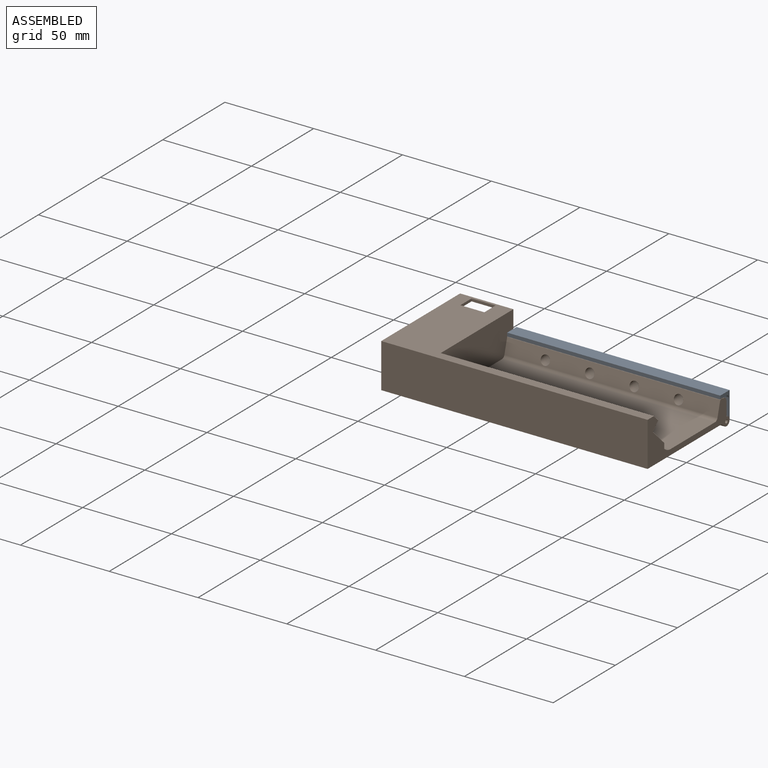
[diagram: assembled view]
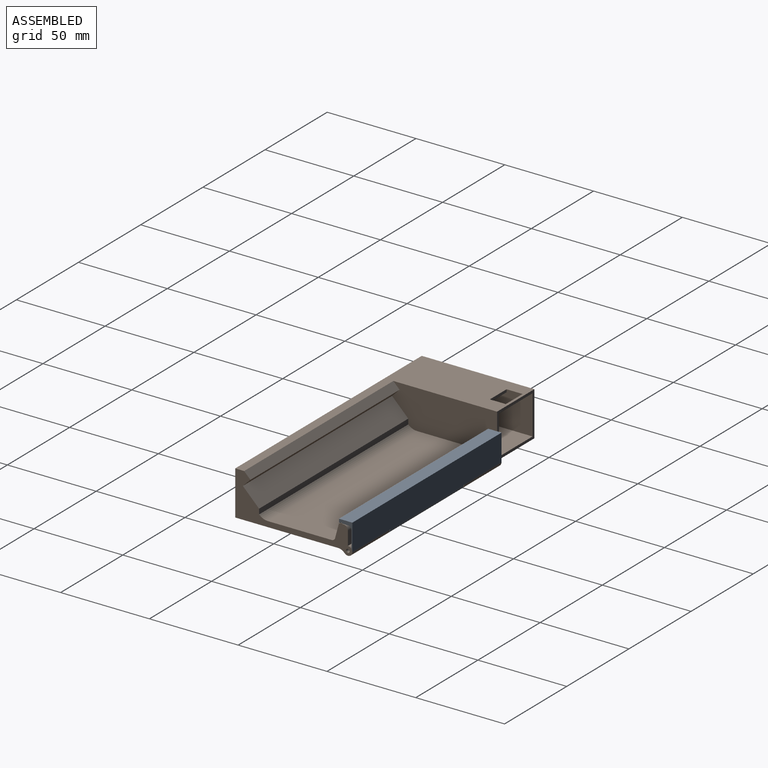
[diagram: assembled view, second angle]
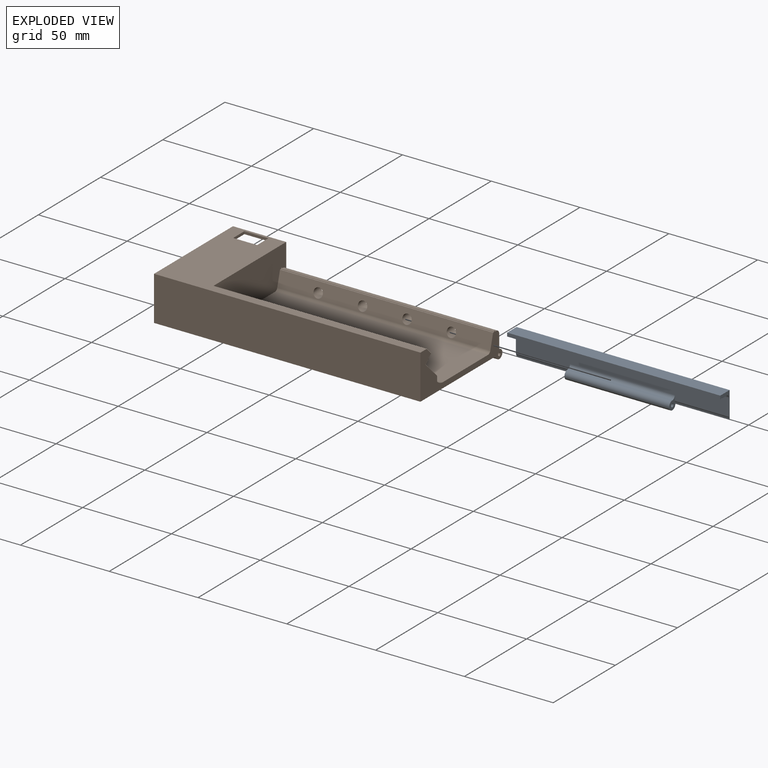
[diagram: exploded view]
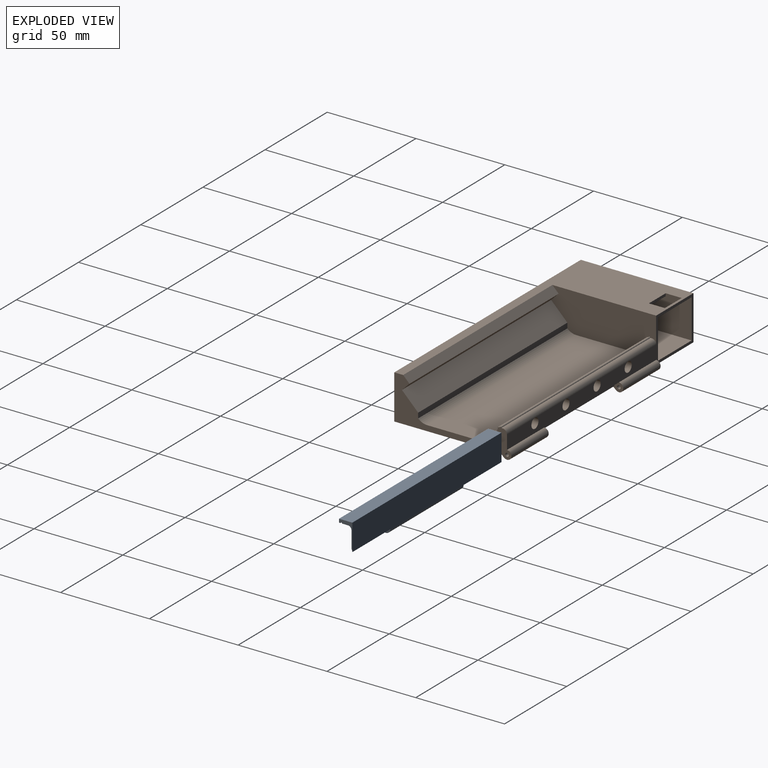
[diagram: exploded view, second angle]
ASSEMBLY  parts=2 mates=2
PART A: 17 faces, bbox 17.5x120x7.5 mm
  f0: plane 120x3.25mm, normal (1,0,0), area 390mm2, adj f10,f11,f14,f15
  f1: cylinder r=2.5mm len=59mm, axis (0,1,0), area 695.1mm2, adj f3,f4,f7,f16
  f2: cylinder r=1mm len=59mm, axis (0,1,0), area 370.7mm2, adj f3,f4
  f3: plane 7x5mm, normal (0,-1,0), area 18mm2, adj f1,f2,f6,f9,f16
  f4: plane 7x5mm, normal (0,1,0), area 18mm2, adj f1,f2,f5,f9,f16
  f5: cylinder r=2.5mm len=30.5mm, axis (0,-1,0), area 49.1mm2, adj f4,f7,f9,f10
  f6: cylinder r=2.5mm len=30.5mm, axis (0,-1,0), area 49.1mm2, adj f3,f7,f9,f11
  f7: plane 120x15mm, normal (0,0,1), area 1800mm2, adj f1,f5,f6,f8,f10,f11
  f8: plane 120x7.5mm, normal (-1,0,0), area 900mm2, adj f7,f10,f11,f13
  f9: plane 120x9.5mm, normal (0,0,-1), area 963mm2, adj f3,f4,f5,f6,f10,f11,f15,f16
  f10: plane 15x7.5mm, normal (0,1,0), area 21.5mm2, adj f0,f5,f7,f8,f9,f12,f13,f14
  f11: plane 15x7.5mm, normal (0,-1,0), area 21.5mm2, adj f0,f6,f7,f8,f9,f12,f13,f14
  f12: plane 120x0.75mm, normal (1,0,0), area 90mm2, adj f10,f11,f13,f14
  f13: plane 120x2mm, normal (0,0,-1), area 240mm2, adj f8,f10,f11,f12
  f14: cylinder r=0.5mm len=120mm, axis (0,-1,0), area 188.5mm2, adj f0,f10,f11,f12
  f15: cylinder r=2mm len=120mm, axis (0,1,0), area 377mm2, adj f0,f9,f10,f11
  f16: cylinder r=2mm len=59mm, axis (0,1,0), area 185.4mm2, adj f1,f3,f4,f9
PART B: 53 faces, bbox 150x27.5x65.9 mm
  f0: plane 59.14x21.92mm, normal (1,0,0), area 1127.2mm2, adj f1,f2,f9,f10,f11,f12,f13,f14
  f1: plane 120x0.75mm, normal (0,-1,0), area 90mm2, adj f0,f3,f9,f48
  f2: plane 150x25mm, normal (0,0,1), area 990.1mm2, adj f0,f3,f4,f6,f7,f8,f16,f18
  f3: plane 65.94x27.5mm, normal (1,0,0), area 471.4mm2, adj f1,f2,f4,f5,f9,f10,f11,f12
  f4: cylinder r=2.5mm len=30mm, axis (1,0,0), area 298.7mm2, adj f2,f3,f43,f51
  f5: cylinder r=1mm len=30mm, axis (1,0,0), area 188.5mm2, adj f3,f43
  f6: plane 8.09x5mm, normal (-1,0,0), area 13.6mm2, adj f2,f18,f39,f41,f50
  f7: plane 60.44x27mm, normal (0,-1,0), area 1631.7mm2, adj f2,f31,f32,f34
  f8: plane 60.44x27mm, normal (0,1,0), area 1510.2mm2, adj f2,f31,f32,f34,f35,f36,f37,f38
  f9: plane 120x0.02mm, normal (0,0,-1), area 2mm2, adj f0,f1,f3,f49
  f10: plane 120x35.87mm, normal (0,-1,0), area 4303.8mm2, adj f0,f3,f11,f52
  f11: cylinder r=7.07mm len=120mm, axis (-1,0,0), area 666.4mm2, adj f0,f3,f10,f12
  f12: plane 120x2.93mm, normal (0,0,1), area 351.5mm2, adj f0,f3,f11,f13
  f13: plane 120x9.14mm, normal (0,-0.71,0.71), area 1551.5mm2, adj f0,f3,f12,f14
  f14: plane 120x4.24mm, normal (0,0.71,0.71), area 720mm2, adj f0,f3,f13,f15
  f15: plane 120x3.54mm, normal (0,-0.71,0.71), area 600mm2, adj f0,f3,f14,f16
  f16: plane 150x63.44mm, normal (0,-1,0), area 2381.6mm2, adj f0,f2,f3,f15,f17,f33,f35,f36
  f17: plane 150x25mm, normal (0,0,-1), area 3750mm2, adj f3,f16,f18,f33
  f18: plane 150x63.44mm, normal (0,1,0), area 9029.8mm2, adj f2,f3,f6,f17,f33,f40,f42,f43
  f19: cylinder r=2.6mm len=5.2mm, axis (0,0,1), area 39.5mm2, adj f29,f49
  f20: cylinder r=2.6mm len=5.2mm, axis (0,0,1), area 39.5mm2, adj f27,f49
  f21: cylinder r=2.6mm len=5.2mm, axis (0,0,1), area 39.5mm2, adj f25,f49
  f22: cylinder r=2.6mm len=5.2mm, axis (0,0,1), area 39.5mm2, adj f23,f49
  f23: plane 5.7x5.7mm, normal (0,0,1), area 4.3mm2, adj f22,f24
  f24: cylinder r=2.85mm len=5.7mm, axis (0,0,1), area 71.6mm2, adj f2,f23,f47
  f25: plane 5.7x5.7mm, normal (0,0,1), area 4.3mm2, adj f21,f26
  f26: cylinder r=2.85mm len=5.7mm, axis (0,0,1), area 71.6mm2, adj f2,f25,f47
  f27: plane 5.7x5.7mm, normal (0,0,1), area 4.3mm2, adj f20,f28
  f28: cylinder r=2.85mm len=5.7mm, axis (0,0,1), area 71.6mm2, adj f2,f27,f47
  f29: plane 5.7x5.7mm, normal (0,0,1), area 4.3mm2, adj f19,f30
  f30: cylinder r=2.85mm len=5.7mm, axis (0,0,1), area 71.6mm2, adj f2,f29,f47
  f31: plane 60.44x22mm, normal (1,0,0), area 1329.6mm2, adj f2,f7,f8,f34
  f32: plane 60.44x22mm, normal (-1,0,0), area 1329.6mm2, adj f2,f7,f8,f34
  f33: plane 63.44x25mm, normal (-1,0,0), area 1585.9mm2, adj f2,f16,f17,f18
  f34: plane 27x22mm, normal (0,0,1), area 594mm2, adj f7,f8,f31,f32
  f35: plane 9x1.5mm, normal (1,0,0), area 13.5mm2, adj f8,f16,f36,f37
  f36: plane 13.5x1.5mm, normal (0,0,-1), area 20.3mm2, adj f8,f16,f35,f38
  f37: plane 13.5x1.5mm, normal (0,0,1), area 20.3mm2, adj f8,f16,f35,f38
  f38: plane 9x1.5mm, normal (-1,0,0), area 13.5mm2, adj f8,f16,f36,f37
  f39: cylinder r=2.5mm len=30mm, axis (1,0,0), area 298.7mm2, adj f2,f6,f44,f50
  f40: plane 1x1mm, normal (1,0,0), area 0.8mm2, adj f2,f18,f41
  f41: cylinder r=1mm len=30mm, axis (1,0,0), area 188.5mm2, adj f6,f40,f44
  f42: plane 60x2.5mm, normal (0,0,1), area 150mm2, adj f18,f43,f44,f45
  f43: plane 8.09x5mm, normal (-1,0,0), area 19mm2, adj f4,f5,f18,f42,f45,f51
  f44: plane 8.09x5mm, normal (1,0,0), area 19mm2, adj f18,f39,f41,f42,f45,f50
  f45: plane 60x2.5mm, normal (0,1,0), area 150mm2, adj f2,f42,f43,f44
  f46: plane 120x0.75mm, normal (0,-1,0), area 90mm2, adj f0,f3,f47,f48
  f47: cylinder r=2.5mm len=120mm, axis (1,0,0), area 471.1mm2, adj f0,f2,f3,f24,f26,f28,f30,f46
  f48: cylinder r=0.5mm len=120mm, axis (1,0,0), area 188.5mm2, adj f0,f1,f3,f46
  f49: plane 120x8.22mm, normal (0,-0.26,-0.97), area 933.4mm2, adj f0,f3,f9,f19,f20,f21,f22,f52
  f50: cylinder r=5mm len=30mm, axis (1,0,0), area 126.2mm2, adj f6,f18,f39,f44
  f51: cylinder r=5mm len=30mm, axis (1,0,0), area 126.2mm2, adj f3,f4,f18,f43
  f52: cylinder r=2mm len=120mm, axis (1,0,0), area 314.2mm2, adj f0,f3,f10,f49
PLACE A rot(axis=(-0.58,0.58,0.58),120deg) t=(-94,38.62,62.42)mm
PLACE B rot(axis=(-1,0,0),90deg) t=(-124.5,-24.82,87.42)mm
MATE parallel B.f44 <-> A.f4  axis (1,0,0) through (-94.5,38.28,62.53)mm
MATE cylindrical A.f2 <-> B.f4  axis (-1,0,0) through (-35,38.62,62.42)mm
